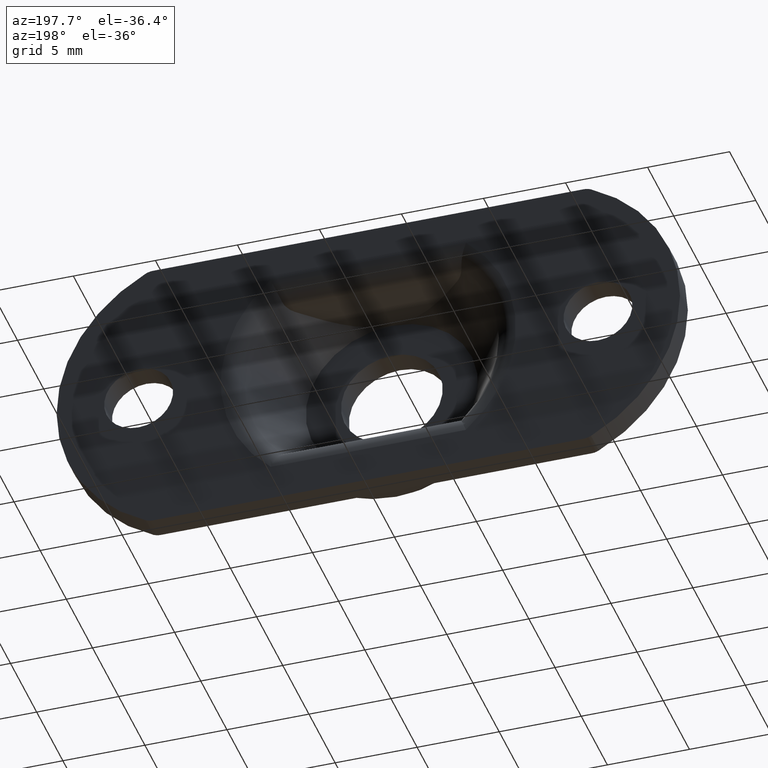
[diagram: clean part render]
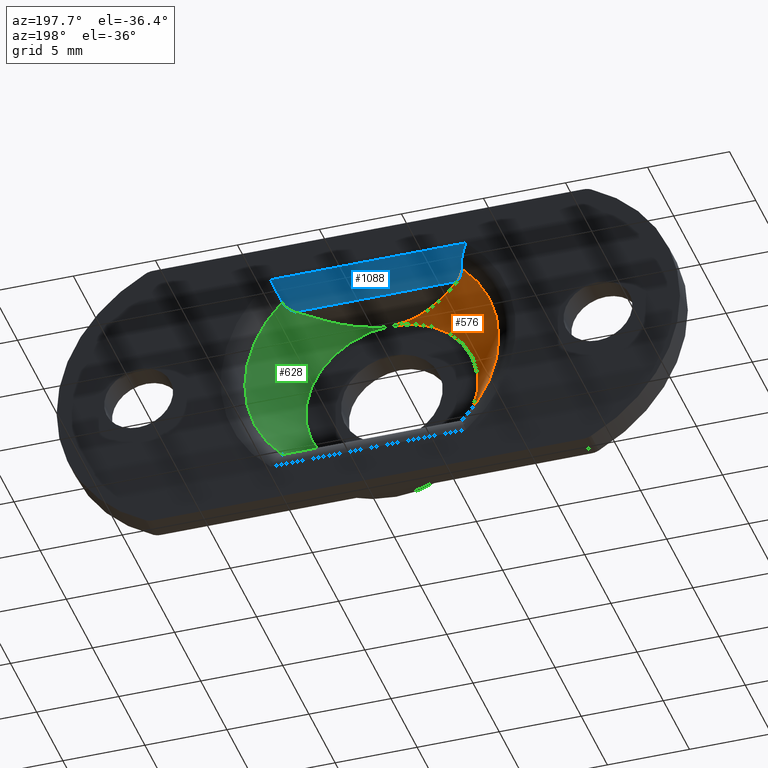
[diagram: same view with three faces highlighted in distinct colors, each labeled with its STEP entity id]
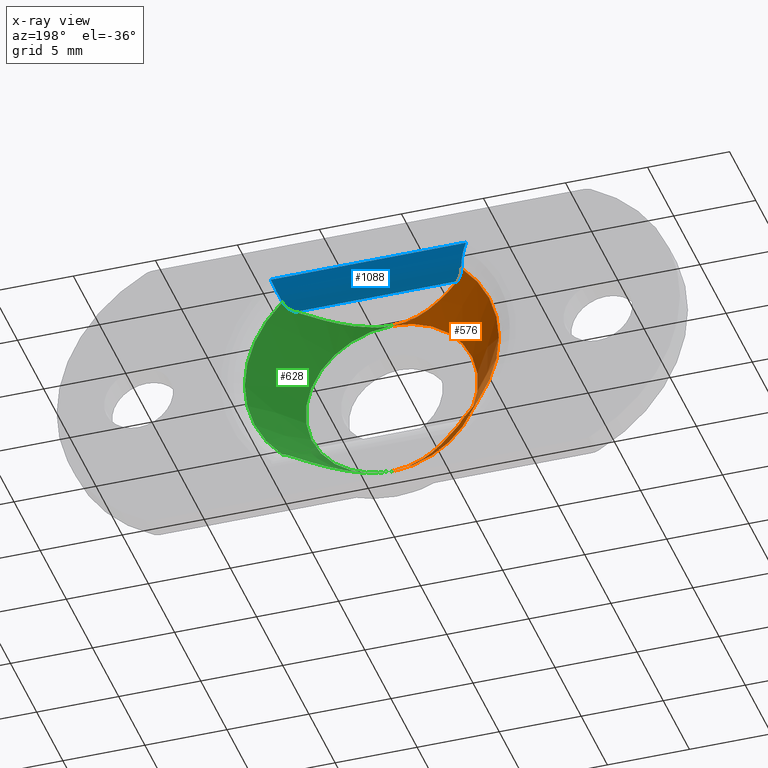
[diagram: x-ray of the same camera — body ghosted, the three highlighted faces saturated]
A machine part, auxiliary view with three faces highlighted in distinct colors.
The next image is the same camera in x-ray (body ghosted, the three faces saturated) — at least one of them is partly hidden behind the body in this view.
Their STEP definitions:

[orange] entity #576 — the highlighted conical surface has half-angle 33.139 deg.
#49 = B_SPLINE_CURVE_WITH_KNOTS ( 'NONE', 3,
 ( #803, #1140, #808, #144, #914, #256, #1030, #367, #1146, #474, #1258, #590, #1370, #705 ),
 .UNSPECIFIED., .F., .F.,
 ( 4, 2, 2, 2, 2, 2, 4 ),
 ( 0.002007610306737664700, 0.003479675338767199000, 0.004951740370796733200, 0.005687772886811499900, 0.006423805402826265700, 0.007159837918841032400, 0.007895870434855798200 ),
 .UNSPECIFIED. ) ;
#55 = CARTESIAN_POINT ( 'NONE',  ( 0.0000000000000000000, -0.6799824639698389700, 0.0000000000000000000 ) ) ;
#67 = VERTEX_POINT ( 'NONE', #1261 ) ;
#69 = CARTESIAN_POINT ( 'NONE',  ( 0.0000000000000000000, 0.8200175360301619200, 0.0000000000000000000 ) ) ;
#96 = CARTESIAN_POINT ( 'NONE',  ( 4.119113777872149600E-014, -4.500000000000609300, -5.250000000000000000 ) ) ;
#111 = CARTESIAN_POINT ( 'NONE',  ( -4.599875791502320500, -1.856795239569105600, 5.250000000000001800 ) ) ;
#140 = CARTESIAN_POINT ( 'NONE',  ( -4.939806075591080000, -1.499999999999722000, -5.250000000000000000 ) ) ;
#144 = CARTESIAN_POINT ( 'NONE',  ( -3.527845745088722800, -2.863405271964112800, -5.250000000000000000 ) ) ;
#199 = CIRCLE ( 'NONE', #248, 5.250000000000000000 ) ;
#200 = CARTESIAN_POINT ( 'NONE',  ( -5.164962960409481800, -1.244853104915636600, 5.264800523737584100 ) ) ;
#217 = B_SPLINE_CURVE_WITH_KNOTS ( 'NONE', 3,
 ( #753, #1419, #1067, #200, #534, #311 ),
 .UNSPECIFIED., .F., .F.,
 ( 4, 2, 4 ),
 ( 0.0000000000000000000, 0.0005085698631453777100, 0.001017139726290755200 ),
 .UNSPECIFIED. ) ;
#242 = CIRCLE ( 'NONE', #713, 7.743985971175919600 ) ;
#244 = CARTESIAN_POINT ( 'NONE',  ( -4.939806075591080000, -1.499999999999722000, -5.250000000000000000 ) ) ;
#248 = AXIS2_PLACEMENT_3D ( 'NONE', #282, #911, #643 ) ;
#256 = CARTESIAN_POINT ( 'NONE',  ( -2.544235370269788600, -3.609695943255292400, -5.250000000000000000 ) ) ;
#282 = CARTESIAN_POINT ( 'NONE',  ( 0.0000000000000000000, -4.500000000000110100, 0.0000000000000000000 ) ) ;
#306 = EDGE_CURVE ( 'NONE', #1187, #1209, #242, .T. ) ;
#311 = CARTESIAN_POINT ( 'NONE',  ( -4.939806075590820600, -1.500000000000000000, 5.250000000000000000 ) ) ;
#322 = CARTESIAN_POINT ( 'NONE',  ( -0.9815560528401000600, -4.368880133937798500, 5.250000000000000000 ) ) ;
#334 = CARTESIAN_POINT ( 'NONE',  ( -2.333541763697001500, -3.758443083391883400, 5.250000000000000000 ) ) ;
#367 = CARTESIAN_POINT ( 'NONE',  ( -1.903019439411341800, -3.993491750928640700, -5.250000000000000900 ) ) ;
#465 = CARTESIAN_POINT ( 'NONE',  ( -5.164649477357195400, -1.245316203433469700, -5.264685333771337700 ) ) ;
#474 = CARTESIAN_POINT ( 'NONE',  ( -1.223052921629158800, -4.291616145290206000, -5.250000000000000000 ) ) ;
#502 = ORIENTED_EDGE ( 'NONE', *, *, #751, .F. ) ;
#534 = CARTESIAN_POINT ( 'NONE',  ( -5.058170061444547700, -1.375763623702378000, 5.249999999999786800 ) ) ;
#576 = ADVANCED_FACE ( 'NONE', ( #588 ), #1444, .F. ) ;
#580 = CARTESIAN_POINT ( 'NONE',  ( -5.419747669685758500, -0.8206275454976620400, -5.402162607290110300 ) ) ;
#588 = FACE_OUTER_BOUND ( 'NONE', #960, .T. ) ;
#590 = CARTESIAN_POINT ( 'NONE',  ( -0.4952239886964511200, -4.472785452347885400, -5.250000000000000000 ) ) ;
#600 = EDGE_CURVE ( 'NONE', #1209, #913, #217, .T. ) ;
#607 = AXIS2_PLACEMENT_3D ( 'NONE', #69, #1315, #1189 ) ;
#643 = DIRECTION ( 'NONE',  ( 0.0000000000000000000, 0.0000000000000000000, -1.000000000000000000 ) ) ;
#662 = CARTESIAN_POINT ( 'NONE',  ( -4.119113777872149600E-014, -4.500000000000609300, 5.250000000000000000 ) ) ;
#670 = CARTESIAN_POINT ( 'NONE',  ( -4.939806075590820600, -1.500000000000000000, 5.250000000000000000 ) ) ;
#705 = CARTESIAN_POINT ( 'NONE',  ( 4.119113777872149600E-014, -4.500000000000609300, -5.250000000000000000 ) ) ;
#713 = AXIS2_PLACEMENT_3D ( 'NONE', #55, #1395, #945 ) ;
#739 = ORIENTED_EDGE ( 'NONE', *, *, #1300, .T. ) ;
#751 = EDGE_CURVE ( 'NONE', #67, #913, #827, .T. ) ;
#753 = CARTESIAN_POINT ( 'NONE',  ( -5.457603583107030900, -0.6799824639698379700, 5.493985971171270000 ) ) ;
#803 = CARTESIAN_POINT ( 'NONE',  ( -4.939806075591080000, -1.499999999999722000, -5.250000000000000000 ) ) ;
#808 = CARTESIAN_POINT ( 'NONE',  ( -4.253169790848613900, -2.201945943836586500, -5.250000000000000000 ) ) ;
#827 = B_SPLINE_CURVE_WITH_KNOTS ( 'NONE', 3,
 ( #662, #995, #885, #322, #1106, #1211, #334, #1334, #1331, #1451, #111, #670 ),
 .UNSPECIFIED., .F., .F.,
 ( 4, 2, 2, 2, 2, 4 ),
 ( 0.007895870434855798200, 0.008628154161633533700, 0.009360437888411267400, 0.01082500534196673800, 0.01228957279552220600, 0.01375414024907767700 ),
 .UNSPECIFIED. ) ;
#860 = ORIENTED_EDGE ( 'NONE', *, *, #893, .F. ) ;
#885 = CARTESIAN_POINT ( 'NONE',  ( -0.4981793162478754800, -4.472199437935411300, 5.250000000000000000 ) ) ;
#893 = EDGE_CURVE ( 'NONE', #1374, #67, #199, .T. ) ;
#903 = CARTESIAN_POINT ( 'NONE',  ( -5.057845679710776900, -1.376104098974710600, -5.250000000000000000 ) ) ;
#911 = DIRECTION ( 'NONE',  ( -0.0000000000000000000, 1.000000000000000000, -0.0000000000000000000 ) ) ;
#913 = VERTEX_POINT ( 'NONE', #1161 ) ;
#914 = CARTESIAN_POINT ( 'NONE',  ( -3.150777009392733900, -3.179058358059065000, -5.250000000000000900 ) ) ;
#940 = ORIENTED_EDGE ( 'NONE', *, *, #600, .T. ) ;
#945 = DIRECTION ( 'NONE',  ( 0.0000000000000000000, 0.0000000000000000000, 1.000000000000000000 ) ) ;
#960 = EDGE_LOOP ( 'NONE', ( #739, #1040, #940, #502, #860, #1452 ) ) ;
#981 = B_SPLINE_CURVE_WITH_KNOTS ( 'NONE', 3,
 ( #244, #903, #465, #1245, #580, #1359 ),
 .UNSPECIFIED., .F., .F.,
 ( 4, 2, 4 ),
 ( 5.267306558544063100E-015, 0.0005083192424706375600, 0.001016638484936007800 ),
 .UNSPECIFIED. ) ;
#995 = CARTESIAN_POINT ( 'NONE',  ( -0.2476267420131778300, -4.500000000000063100, 5.249999999999999100 ) ) ;
#1030 = CARTESIAN_POINT ( 'NONE',  ( -2.333992362184599000, -3.746471161718860200, -5.250000000000000900 ) ) ;
#1040 = ORIENTED_EDGE ( 'NONE', *, *, #306, .T. ) ;
#1067 = CARTESIAN_POINT ( 'NONE',  ( -5.346987440602348800, -0.9657884509684376800, 5.340909710754282900 ) ) ;
#1106 = CARTESIAN_POINT ( 'NONE',  ( -1.217652323157987000, -4.293601692079018800, 5.250000000000000000 ) ) ;
#1140 = CARTESIAN_POINT ( 'NONE',  ( -4.600962034739503700, -1.855655104564428500, -5.249999999999999100 ) ) ;
#1146 = CARTESIAN_POINT ( 'NONE',  ( -1.681666019424370900, -4.104323972833965300, -5.250000000000000900 ) ) ;
#1161 = CARTESIAN_POINT ( 'NONE',  ( -4.939806075590820600, -1.500000000000000000, 5.250000000000000000 ) ) ;
#1187 = VERTEX_POINT ( 'NONE', #1312 ) ;
#1189 = DIRECTION ( 'NONE',  ( 0.0000000000000000000, 0.0000000000000000000, 1.000000000000000000 ) ) ;
#1209 = VERTEX_POINT ( 'NONE', #1319 ) ;
#1211 = CARTESIAN_POINT ( 'NONE',  ( -1.910927622155105000, -4.011131107655534000, 5.250000000000000900 ) ) ;
#1245 = CARTESIAN_POINT ( 'NONE',  ( -5.347161401789940700, -0.9655392422841251300, -5.340966575125620800 ) ) ;
#1258 = CARTESIAN_POINT ( 'NONE',  ( -0.9831915523722477600, -4.368576102648264100, -5.250000000000000000 ) ) ;
#1261 = CARTESIAN_POINT ( 'NONE',  ( -4.119113777872149600E-014, -4.500000000000609300, 5.250000000000000000 ) ) ;
#1300 = EDGE_CURVE ( 'NONE', #1325, #1187, #981, .T. ) ;
#1312 = CARTESIAN_POINT ( 'NONE',  ( -5.457603583107030900, -0.6799824639698379700, -5.493985971171270000 ) ) ;
#1315 = DIRECTION ( 'NONE',  ( 0.0000000000000000000, 1.000000000000000000, 0.0000000000000000000 ) ) ;
#1319 = CARTESIAN_POINT ( 'NONE',  ( -5.457603583107030900, -0.6799824639698379700, 5.493985971171270000 ) ) ;
#1325 = VERTEX_POINT ( 'NONE', #140 ) ;
#1331 = CARTESIAN_POINT ( 'NONE',  ( -3.521242131551521700, -2.869174936425031900, 5.249999999999999100 ) ) ;
#1334 = CARTESIAN_POINT ( 'NONE',  ( -3.138946717561355000, -3.188279608983655600, 5.249999999999998200 ) ) ;
#1348 = EDGE_CURVE ( 'NONE', #1325, #1374, #49, .T. ) ;
#1359 = CARTESIAN_POINT ( 'NONE',  ( -5.457603583107030900, -0.6799824639698379700, -5.493985971171270000 ) ) ;
#1370 = CARTESIAN_POINT ( 'NONE',  ( -0.2488944206890510700, -4.500000000000076400, -5.250000000000000900 ) ) ;
#1374 = VERTEX_POINT ( 'NONE', #96 ) ;
#1395 = DIRECTION ( 'NONE',  ( 0.0000000000000000000, 1.000000000000000000, 0.0000000000000000000 ) ) ;
#1419 = CARTESIAN_POINT ( 'NONE',  ( -5.419525207135281500, -0.8214540547651706400, 5.401623001778769900 ) ) ;
#1444 = CONICAL_SURFACE ( 'NONE', #607, 8.723295338601358800, 0.5783921915890831700 ) ;
#1451 = CARTESIAN_POINT ( 'NONE',  ( -4.250684821893830000, -2.204461487035993100, 5.249999999999999100 ) ) ;
#1452 = ORIENTED_EDGE ( 'NONE', *, *, #1348, .F. ) ;

[blue] entity #1088 — the highlighted cylindrical surface (edge-blend (fillet) strip) has radius 1.5 mm, axis along (-1, 0, 0).
#11 = VERTEX_POINT ( 'NONE', #895 ) ;
#43 = CARTESIAN_POINT ( 'NONE',  ( 5.860920536715004100, 3.524292335288330500E-012, 6.506606939670254200 ) ) ;
#48 = CARTESIAN_POINT ( 'NONE',  ( -5.594942143767600100, -0.3079145310201486500, 5.830995490040776600 ) ) ;
#66 = CARTESIAN_POINT ( 'NONE',  ( 5.636414344556228300, -0.2351167739776749100, 5.934404507488378200 ) ) ;
#123 = VERTEX_POINT ( 'NONE', #1031 ) ;
#147 = ORIENTED_EDGE ( 'NONE', *, *, #491, .F. ) ;
#171 = VECTOR ( 'NONE', #976, 1000.000000000000000 ) ;
#200 = CARTESIAN_POINT ( 'NONE',  ( -5.164962960409481800, -1.244853104915636600, 5.264800523737584100 ) ) ;
#217 = B_SPLINE_CURVE_WITH_KNOTS ( 'NONE', 3,
 ( #753, #1419, #1067, #200, #534, #311 ),
 .UNSPECIFIED., .F., .F.,
 ( 4, 2, 4 ),
 ( 0.0000000000000000000, 0.0005085698631453777100, 0.001017139726290755200 ),
 .UNSPECIFIED. ) ;
#245 = VERTEX_POINT ( 'NONE', #726 ) ;
#260 = ORIENTED_EDGE ( 'NONE', *, *, #745, .F. ) ;
#272 = CARTESIAN_POINT ( 'NONE',  ( 5.765322904550298900, -0.06118167947421340700, 6.259791705516936300 ) ) ;
#273 = CARTESIAN_POINT ( 'NONE',  ( -5.860594314477802800, 3.532216328509892900E-012, 6.505744080475541800 ) ) ;
#275 = EDGE_CURVE ( 'NONE', #11, #123, #1248, .T. ) ;
#290 = CARTESIAN_POINT ( 'NONE',  ( 6.283284698948969900, -1.499999999992952100, 5.250000000000000000 ) ) ;
#296 = CARTESIAN_POINT ( 'NONE',  ( 5.457603583107030900, -0.6799824639698379700, 5.493985971171270000 ) ) ;
#299 = ORIENTED_EDGE ( 'NONE', *, *, #1294, .F. ) ;
#311 = CARTESIAN_POINT ( 'NONE',  ( -4.939806075590820600, -1.500000000000000000, 5.250000000000000000 ) ) ;
#328 = CARTESIAN_POINT ( 'NONE',  ( -5.457603583107030900, -0.6799824639698379700, 5.493985971171270000 ) ) ;
#330 = CARTESIAN_POINT ( 'NONE',  ( 5.057845679710776900, -1.376104098974710600, 5.250000000000000000 ) ) ;
#337 = CARTESIAN_POINT ( 'NONE',  ( 5.457603583107030900, -0.6799824639698379700, 5.493985971171270000 ) ) ;
#375 = EDGE_CURVE ( 'NONE', #913, #245, #1098, .T. ) ;
#461 = CARTESIAN_POINT ( 'NONE',  ( -6.283284698948969900, 0.0000000000000000000, 6.750000000000000000 ) ) ;
#481 = VERTEX_POINT ( 'NONE', #881 ) ;
#487 = CARTESIAN_POINT ( 'NONE',  ( 5.594945557423763200, -0.3079077144595867000, 5.831003962269154100 ) ) ;
#491 = EDGE_CURVE ( 'NONE', #245, #11, #1144, .T. ) ;
#492 = CARTESIAN_POINT ( 'NONE',  ( 5.486645266969127900, -0.5720846581812358800, 5.564429525792693500 ) ) ;
#495 = CARTESIAN_POINT ( 'NONE',  ( -5.636409862668338100, -0.2351242518387244900, 5.934393301199674100 ) ) ;
#504 = LINE ( 'NONE', #461, #1363 ) ;
#512 = DIRECTION ( 'NONE',  ( -1.000000000000000000, 0.0000000000000000000, 0.0000000000000000000 ) ) ;
#534 = CARTESIAN_POINT ( 'NONE',  ( -5.058170061444547700, -1.375763623702378000, 5.249999999999786800 ) ) ;
#600 = EDGE_CURVE ( 'NONE', #1209, #913, #217, .T. ) ;
#603 = CARTESIAN_POINT ( 'NONE',  ( -5.520165495597854700, -0.4765386341422089800, 5.646295380424438000 ) ) ;
#630 = DIRECTION ( 'NONE',  ( 0.0000000000000000000, 0.0000000000000000000, 1.000000000000000000 ) ) ;
#677 = AXIS2_PLACEMENT_3D ( 'NONE', #1409, #512, #630 ) ;
#726 = CARTESIAN_POINT ( 'NONE',  ( 4.939806075591080000, -1.499999999999722000, 5.250000000000000000 ) ) ;
#745 = EDGE_CURVE ( 'NONE', #481, #1209, #1089, .T. ) ;
#753 = CARTESIAN_POINT ( 'NONE',  ( -5.457603583107030900, -0.6799824639698379700, 5.493985971171270000 ) ) ;
#825 = CARTESIAN_POINT ( 'NONE',  ( 5.952940449895399900, 0.0000000000000000000, 6.750000000000000000 ) ) ;
#857 = ORIENTED_EDGE ( 'NONE', *, *, #275, .F. ) ;
#881 = CARTESIAN_POINT ( 'NONE',  ( -5.952940449895399900, 0.0000000000000000000, 6.750000000000000000 ) ) ;
#895 = CARTESIAN_POINT ( 'NONE',  ( 5.457603583107030900, -0.6799824639698379700, 5.493985971171270000 ) ) ;
#913 = VERTEX_POINT ( 'NONE', #1161 ) ;
#936 = FACE_OUTER_BOUND ( 'NONE', #1379, .T. ) ;
#943 = CARTESIAN_POINT ( 'NONE',  ( -5.765315098105936900, -0.06118935192987082200, 6.259771787218411100 ) ) ;
#976 = DIRECTION ( 'NONE',  ( 1.000000000000000000, 0.0000000000000000000, 0.0000000000000000000 ) ) ;
#1031 = CARTESIAN_POINT ( 'NONE',  ( 5.952940449895399900, 0.0000000000000000000, 6.750000000000000000 ) ) ;
#1067 = CARTESIAN_POINT ( 'NONE',  ( -5.346987440602348800, -0.9657884509684376800, 5.340909710754282900 ) ) ;
#1088 = ADVANCED_FACE ( 'NONE', ( #936 ), #1205, .T. ) ;
#1089 = B_SPLINE_CURVE_WITH_KNOTS ( 'NONE', 3,
 ( #1386, #273, #943, #495, #48, #603, #1113, #328 ),
 .UNSPECIFIED., .F., .F.,
 ( 4, 2, 2, 4 ),
 ( -9.524293896517147800E-006, 0.0007738620293124931300, 0.001165555190916997200, 0.001557248352521501400 ),
 .UNSPECIFIED. ) ;
#1098 = LINE ( 'NONE', #290, #171 ) ;
#1111 = CARTESIAN_POINT ( 'NONE',  ( 5.164649477357195400, -1.245316203433469700, 5.264685333771337700 ) ) ;
#1113 = CARTESIAN_POINT ( 'NONE',  ( -5.486644637276741700, -0.5720869976608298200, 5.564427998409837700 ) ) ;
#1135 = ORIENTED_EDGE ( 'NONE', *, *, #600, .F. ) ;
#1144 = B_SPLINE_CURVE_WITH_KNOTS ( 'NONE', 3,
 ( #1327, #330, #1111, #1219, #1445, #337 ),
 .UNSPECIFIED., .F., .F.,
 ( 4, 2, 4 ),
 ( 5.267306558544063100E-015, 0.0005083192424706375600, 0.001016638484936007800 ),
 .UNSPECIFIED. ) ;
#1159 = CARTESIAN_POINT ( 'NONE',  ( 5.520166946061979600, -0.4765344819892115000, 5.646298922692157200 ) ) ;
#1161 = CARTESIAN_POINT ( 'NONE',  ( -4.939806075590820600, -1.500000000000000000, 5.250000000000000000 ) ) ;
#1205 = CYLINDRICAL_SURFACE ( 'NONE', #677, 1.500000000000000400 ) ;
#1209 = VERTEX_POINT ( 'NONE', #1319 ) ;
#1219 = CARTESIAN_POINT ( 'NONE',  ( 5.347161401789940700, -0.9655392422841251300, 5.340966575125620800 ) ) ;
#1241 = DIRECTION ( 'NONE',  ( -1.000000000000000000, -0.0000000000000000000, -0.0000000000000000000 ) ) ;
#1248 = B_SPLINE_CURVE_WITH_KNOTS ( 'NONE', 3,
 ( #296, #492, #1159, #487, #66, #272, #43, #825 ),
 .UNSPECIFIED., .F., .F.,
 ( 4, 2, 2, 4 ),
 ( 0.0000000000000000000, 0.0003903094651646987900, 0.0007806189303293975700, 0.001561237860658798000 ),
 .UNSPECIFIED. ) ;
#1294 = EDGE_CURVE ( 'NONE', #123, #481, #504, .T. ) ;
#1319 = CARTESIAN_POINT ( 'NONE',  ( -5.457603583107030900, -0.6799824639698379700, 5.493985971171270000 ) ) ;
#1327 = CARTESIAN_POINT ( 'NONE',  ( 4.939806075591080000, -1.499999999999722000, 5.250000000000000000 ) ) ;
#1363 = VECTOR ( 'NONE', #1241, 1000.000000000000000 ) ;
#1379 = EDGE_LOOP ( 'NONE', ( #260, #299, #857, #147, #1453, #1135 ) ) ;
#1386 = CARTESIAN_POINT ( 'NONE',  ( -5.952940449895399900, 0.0000000000000000000, 6.750000000000000000 ) ) ;
#1409 = CARTESIAN_POINT ( 'NONE',  ( 28.06997129832040000, -1.499999999992952100, 6.750000000000000000 ) ) ;
#1419 = CARTESIAN_POINT ( 'NONE',  ( -5.419525207135281500, -0.8214540547651706400, 5.401623001778769900 ) ) ;
#1445 = CARTESIAN_POINT ( 'NONE',  ( 5.419747669685758500, -0.8206275454976620400, 5.402162607290110300 ) ) ;
#1453 = ORIENTED_EDGE ( 'NONE', *, *, #375, .F. ) ;

[green] entity #628 — the highlighted conical surface has half-angle 33.139 deg.
#11 = VERTEX_POINT ( 'NONE', #895 ) ;
#15 = CARTESIAN_POINT ( 'NONE',  ( 5.457603583107030900, -0.6799824639698379700, -5.493985971171270000 ) ) ;
#46 = CARTESIAN_POINT ( 'NONE',  ( -4.119113777872149600E-014, -4.500000000000609300, 5.250000000000000000 ) ) ;
#57 = B_SPLINE_CURVE_WITH_KNOTS ( 'NONE', 3,
 ( #167, #1382, #838, #740, #73, #521, #1301, #639, #933, #1186, #409, #1070 ),
 .UNSPECIFIED., .F., .F.,
 ( 4, 2, 2, 2, 2, 4 ),
 ( 0.007895870434855798200, 0.008628154161633533700, 0.009360437888411267400, 0.01082500534196673800, 0.01228957279552220600, 0.01375414024907767700 ),
 .UNSPECIFIED. ) ;
#67 = VERTEX_POINT ( 'NONE', #1261 ) ;
#73 = CARTESIAN_POINT ( 'NONE',  ( 1.217652323157987000, -4.293601692079018800, -5.250000000000000000 ) ) ;
#78 = DIRECTION ( 'NONE',  ( 8.881784197001252300E-016, 0.0000000000000000000, -1.000000000000000000 ) ) ;
#84 = DIRECTION ( 'NONE',  ( 0.0000000000000000000, 0.0000000000000000000, 1.000000000000000000 ) ) ;
#96 = CARTESIAN_POINT ( 'NONE',  ( 4.119113777872149600E-014, -4.500000000000609300, -5.250000000000000000 ) ) ;
#101 = CARTESIAN_POINT ( 'NONE',  ( 5.058170061444547700, -1.375763623702379800, -5.249999999999786800 ) ) ;
#112 = ORIENTED_EDGE ( 'NONE', *, *, #491, .T. ) ;
#130 = ORIENTED_EDGE ( 'NONE', *, *, #259, .F. ) ;
#167 = CARTESIAN_POINT ( 'NONE',  ( 4.119113777872149600E-014, -4.500000000000609300, -5.250000000000000000 ) ) ;
#188 = CARTESIAN_POINT ( 'NONE',  ( 0.0000000000000000000, 0.8200175360301619200, 0.0000000000000000000 ) ) ;
#198 = ORIENTED_EDGE ( 'NONE', *, *, #633, .F. ) ;
#202 = EDGE_CURVE ( 'NONE', #245, #67, #324, .T. ) ;
#245 = VERTEX_POINT ( 'NONE', #726 ) ;
#259 = EDGE_CURVE ( 'NONE', #1374, #880, #57, .T. ) ;
#324 = B_SPLINE_CURVE_WITH_KNOTS ( 'NONE', 3,
 ( #1393, #613, #937, #1151, #359, #585, #1250, #1276, #497, #478, #469, #1280, #1022, #46 ),
 .UNSPECIFIED., .F., .F.,
 ( 4, 2, 2, 2, 2, 2, 4 ),
 ( 0.002007610306737664700, 0.003479675338767199000, 0.004951740370796733200, 0.005687772886811499900, 0.006423805402826265700, 0.007159837918841032400, 0.007895870434855798200 ),
 .UNSPECIFIED. ) ;
#330 = CARTESIAN_POINT ( 'NONE',  ( 5.057845679710776900, -1.376104098974710600, 5.250000000000000000 ) ) ;
#337 = CARTESIAN_POINT ( 'NONE',  ( 5.457603583107030900, -0.6799824639698379700, 5.493985971171270000 ) ) ;
#359 = CARTESIAN_POINT ( 'NONE',  ( 3.150777009392733900, -3.179058358059065000, 5.250000000000000900 ) ) ;
#409 = CARTESIAN_POINT ( 'NONE',  ( 4.599875791502320500, -1.856795239569105000, -5.250000000000001800 ) ) ;
#420 = ORIENTED_EDGE ( 'NONE', *, *, #1406, .T. ) ;
#426 = B_SPLINE_CURVE_WITH_KNOTS ( 'NONE', 3,
 ( #1210, #1324, #1441, #770, #101, #873 ),
 .UNSPECIFIED., .F., .F.,
 ( 4, 2, 4 ),
 ( 0.0000000000000000000, 0.0005085698631453777100, 0.001017139726290755200 ),
 .UNSPECIFIED. ) ;
#430 = DIRECTION ( 'NONE',  ( 0.0000000000000000000, 1.000000000000000000, 0.0000000000000000000 ) ) ;
#469 = CARTESIAN_POINT ( 'NONE',  ( 0.9831915523722477600, -4.368576102648264100, 5.250000000000000000 ) ) ;
#478 = CARTESIAN_POINT ( 'NONE',  ( 1.223052921629158800, -4.291616145290206000, 5.250000000000000000 ) ) ;
#491 = EDGE_CURVE ( 'NONE', #245, #11, #1144, .T. ) ;
#497 = CARTESIAN_POINT ( 'NONE',  ( 1.681666019424370900, -4.104323972833965300, 5.250000000000000900 ) ) ;
#521 = CARTESIAN_POINT ( 'NONE',  ( 1.910927622155105000, -4.011131107655534000, -5.250000000000000900 ) ) ;
#554 = CONICAL_SURFACE ( 'NONE', #758, 8.723295338601358800, 0.5783921915890831700 ) ;
#585 = CARTESIAN_POINT ( 'NONE',  ( 2.544235370269788600, -3.609695943255292400, 5.250000000000000000 ) ) ;
#589 = ORIENTED_EDGE ( 'NONE', *, *, #1027, .T. ) ;
#613 = CARTESIAN_POINT ( 'NONE',  ( 4.600962034739503700, -1.855655104564428500, 5.249999999999999100 ) ) ;
#623 = FACE_OUTER_BOUND ( 'NONE', #1420, .T. ) ;
#628 = ADVANCED_FACE ( 'NONE', ( #623 ), #554, .F. ) ;
#633 = EDGE_CURVE ( 'NONE', #67, #1374, #849, .T. ) ;
#639 = CARTESIAN_POINT ( 'NONE',  ( 3.138946717561355000, -3.188279608983655600, -5.249999999999998200 ) ) ;
#640 = CARTESIAN_POINT ( 'NONE',  ( 0.0000000000000000000, -4.500000000000110100, 0.0000000000000000000 ) ) ;
#726 = CARTESIAN_POINT ( 'NONE',  ( 4.939806075591080000, -1.499999999999722000, 5.250000000000000000 ) ) ;
#740 = CARTESIAN_POINT ( 'NONE',  ( 0.9815560528401000600, -4.368880133937798500, -5.250000000000000000 ) ) ;
#746 = DIRECTION ( 'NONE',  ( -0.0000000000000000000, 1.000000000000000000, -0.0000000000000000000 ) ) ;
#758 = AXIS2_PLACEMENT_3D ( 'NONE', #188, #430, #84 ) ;
#766 = CARTESIAN_POINT ( 'NONE',  ( 4.939806075590820600, -1.500000000000000000, -5.250000000000000000 ) ) ;
#770 = CARTESIAN_POINT ( 'NONE',  ( 5.164962960409481800, -1.244853104915636600, -5.264800523737584100 ) ) ;
#773 = CARTESIAN_POINT ( 'NONE',  ( 0.0000000000000000000, -0.6799824639698389700, 0.0000000000000000000 ) ) ;
#830 = AXIS2_PLACEMENT_3D ( 'NONE', #640, #746, #78 ) ;
#838 = CARTESIAN_POINT ( 'NONE',  ( 0.4981793162478754800, -4.472199437935411300, -5.250000000000000000 ) ) ;
#844 = AXIS2_PLACEMENT_3D ( 'NONE', #773, #1443, #876 ) ;
#849 = CIRCLE ( 'NONE', #830, 5.250000000000000000 ) ;
#873 = CARTESIAN_POINT ( 'NONE',  ( 4.939806075590820600, -1.500000000000000000, -5.250000000000000000 ) ) ;
#876 = DIRECTION ( 'NONE',  ( 0.0000000000000000000, 0.0000000000000000000, 1.000000000000000000 ) ) ;
#880 = VERTEX_POINT ( 'NONE', #766 ) ;
#895 = CARTESIAN_POINT ( 'NONE',  ( 5.457603583107030900, -0.6799824639698379700, 5.493985971171270000 ) ) ;
#933 = CARTESIAN_POINT ( 'NONE',  ( 3.521242131551521700, -2.869174936425031900, -5.249999999999999100 ) ) ;
#937 = CARTESIAN_POINT ( 'NONE',  ( 4.253169790848613900, -2.201945943836586500, 5.250000000000000000 ) ) ;
#980 = CIRCLE ( 'NONE', #844, 7.743985971175919600 ) ;
#1022 = CARTESIAN_POINT ( 'NONE',  ( 0.2488944206890510700, -4.500000000000076400, 5.250000000000000900 ) ) ;
#1027 = EDGE_CURVE ( 'NONE', #11, #1255, #980, .T. ) ;
#1041 = ORIENTED_EDGE ( 'NONE', *, *, #202, .F. ) ;
#1070 = CARTESIAN_POINT ( 'NONE',  ( 4.939806075590820600, -1.500000000000000000, -5.250000000000000000 ) ) ;
#1111 = CARTESIAN_POINT ( 'NONE',  ( 5.164649477357195400, -1.245316203433469700, 5.264685333771337700 ) ) ;
#1144 = B_SPLINE_CURVE_WITH_KNOTS ( 'NONE', 3,
 ( #1327, #330, #1111, #1219, #1445, #337 ),
 .UNSPECIFIED., .F., .F.,
 ( 4, 2, 4 ),
 ( 5.267306558544063100E-015, 0.0005083192424706375600, 0.001016638484936007800 ),
 .UNSPECIFIED. ) ;
#1151 = CARTESIAN_POINT ( 'NONE',  ( 3.527845745088722800, -2.863405271964112800, 5.250000000000000000 ) ) ;
#1186 = CARTESIAN_POINT ( 'NONE',  ( 4.250684821893830000, -2.204461487035994000, -5.249999999999999100 ) ) ;
#1210 = CARTESIAN_POINT ( 'NONE',  ( 5.457603583107030900, -0.6799824639698379700, -5.493985971171270000 ) ) ;
#1219 = CARTESIAN_POINT ( 'NONE',  ( 5.347161401789940700, -0.9655392422841251300, 5.340966575125620800 ) ) ;
#1250 = CARTESIAN_POINT ( 'NONE',  ( 2.333992362184599000, -3.746471161718860200, 5.250000000000000900 ) ) ;
#1255 = VERTEX_POINT ( 'NONE', #15 ) ;
#1261 = CARTESIAN_POINT ( 'NONE',  ( -4.119113777872149600E-014, -4.500000000000609300, 5.250000000000000000 ) ) ;
#1276 = CARTESIAN_POINT ( 'NONE',  ( 1.903019439411341800, -3.993491750928640700, 5.250000000000000900 ) ) ;
#1280 = CARTESIAN_POINT ( 'NONE',  ( 0.4952239886964511200, -4.472785452347885400, 5.250000000000000000 ) ) ;
#1301 = CARTESIAN_POINT ( 'NONE',  ( 2.333541763697001500, -3.758443083391883400, -5.250000000000000000 ) ) ;
#1324 = CARTESIAN_POINT ( 'NONE',  ( 5.419525207135281500, -0.8214540547651706400, -5.401623001778769900 ) ) ;
#1327 = CARTESIAN_POINT ( 'NONE',  ( 4.939806075591080000, -1.499999999999722000, 5.250000000000000000 ) ) ;
#1374 = VERTEX_POINT ( 'NONE', #96 ) ;
#1382 = CARTESIAN_POINT ( 'NONE',  ( 0.2476267420131778300, -4.500000000000063100, -5.249999999999999100 ) ) ;
#1393 = CARTESIAN_POINT ( 'NONE',  ( 4.939806075591080000, -1.499999999999722000, 5.250000000000000000 ) ) ;
#1406 = EDGE_CURVE ( 'NONE', #1255, #880, #426, .T. ) ;
#1420 = EDGE_LOOP ( 'NONE', ( #1041, #112, #589, #420, #130, #198 ) ) ;
#1441 = CARTESIAN_POINT ( 'NONE',  ( 5.346987440602348800, -0.9657884509684376800, -5.340909710754282900 ) ) ;
#1443 = DIRECTION ( 'NONE',  ( 0.0000000000000000000, 1.000000000000000000, 0.0000000000000000000 ) ) ;
#1445 = CARTESIAN_POINT ( 'NONE',  ( 5.419747669685758500, -0.8206275454976620400, 5.402162607290110300 ) ) ;